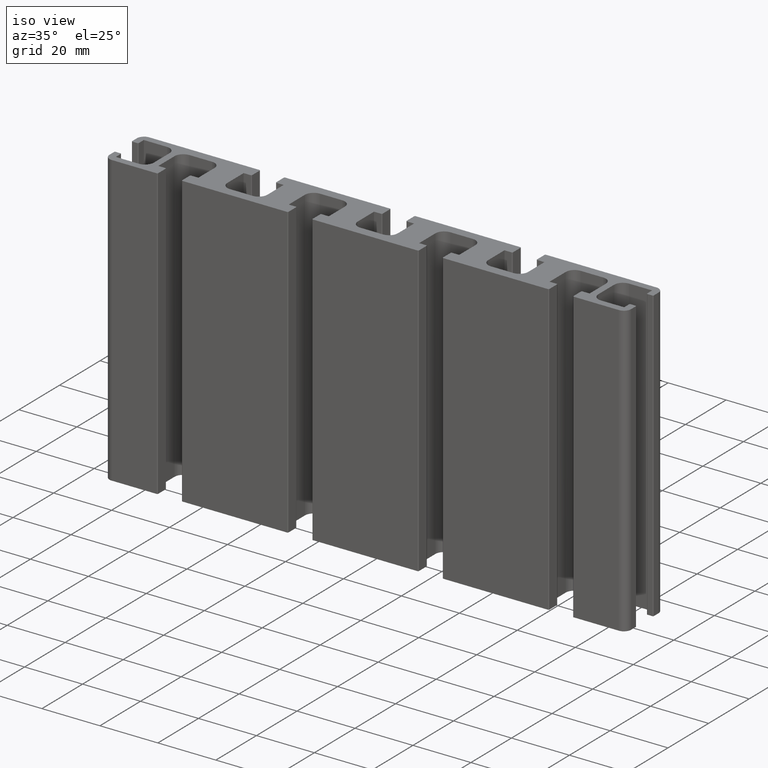
[diagram: clean part render]
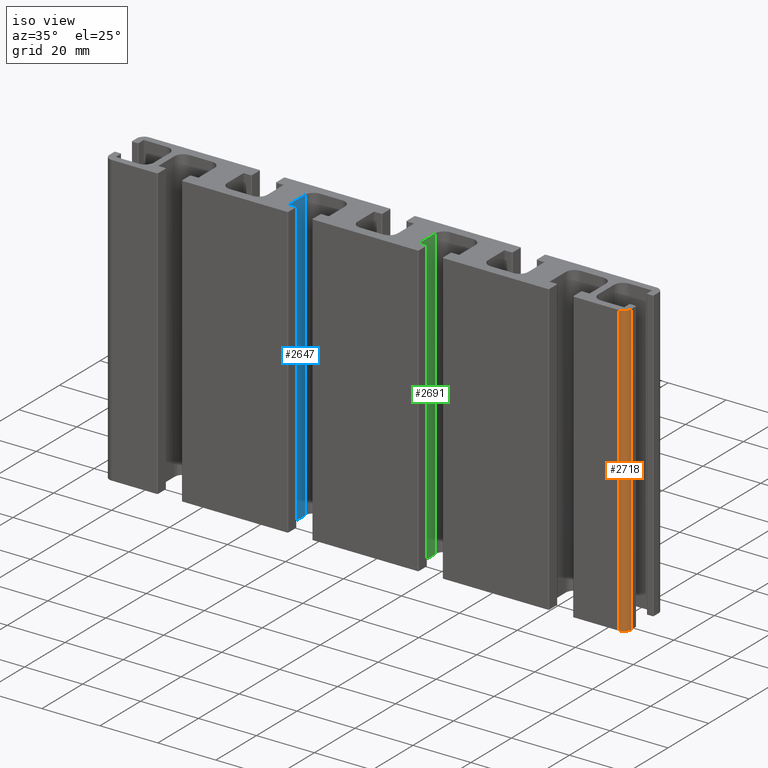
[diagram: same view with three faces highlighted in distinct colors, each labeled with its STEP entity id]
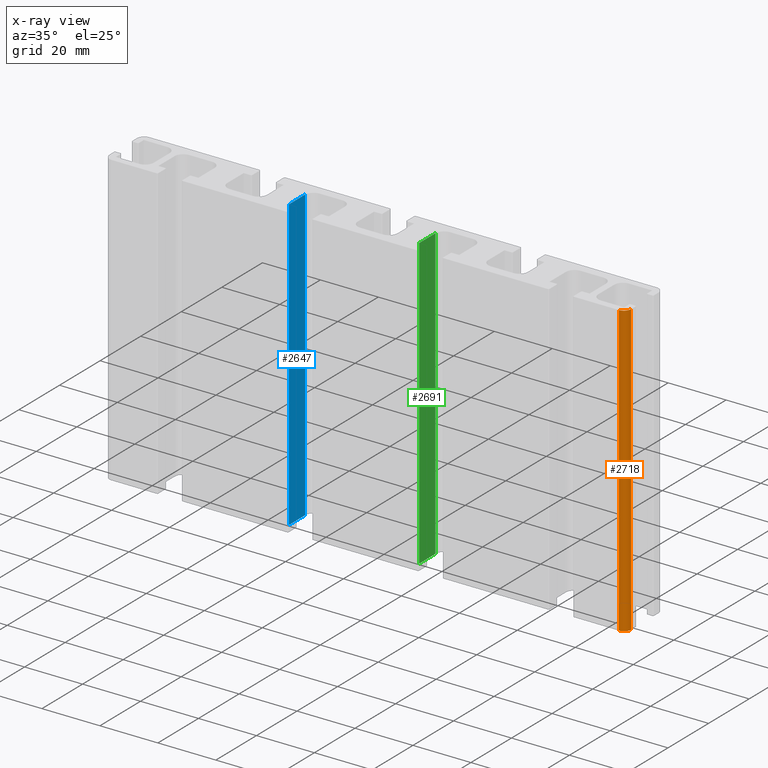
[diagram: x-ray of the same camera — body ghosted, the three highlighted faces saturated]
A machine part, iso view with three faces highlighted in distinct colors.
The next image is the same camera in x-ray (body ghosted, the three faces saturated) — at least one of them is partly hidden behind the body in this view.
Their STEP definitions:

[orange] entity #2718 — the highlighted cylindrical surface (edge-blend (fillet) strip) has radius 2.5 mm, axis along (0, 0, 1).
#123=CIRCLE('',#2958,2.5);
#130=CIRCLE('',#2972,2.5);
#188=CYLINDRICAL_SURFACE('',#2971,2.5);
#322=FACE_OUTER_BOUND('',#458,.T.);
#458=EDGE_LOOP('',(#2365,#2366,#2367,#2368));
#735=LINE('',#4540,#1021);
#744=LINE('',#4567,#1030);
#1021=VECTOR('',#3719,100.);
#1030=VECTOR('',#3756,100.);
#1295=VERTEX_POINT('',#4537);
#1296=VERTEX_POINT('',#4539);
#1297=VERTEX_POINT('',#4543);
#1300=VERTEX_POINT('',#4566);
#1683=EDGE_CURVE('',#1295,#1296,#735,.T.);
#1685=EDGE_CURVE('',#1297,#1296,#123,.T.);
#1699=EDGE_CURVE('',#1300,#1297,#744,.T.);
#1701=EDGE_CURVE('',#1300,#1295,#130,.T.);
#2365=ORIENTED_EDGE('',*,*,#1685,.T.);
#2366=ORIENTED_EDGE('',*,*,#1683,.F.);
#2367=ORIENTED_EDGE('',*,*,#1701,.F.);
#2368=ORIENTED_EDGE('',*,*,#1699,.T.);
#2718=ADVANCED_FACE('',(#322),#188,.T.);
#2958=AXIS2_PLACEMENT_3D('',#4544,#3723,#3724);
#2971=AXIS2_PLACEMENT_3D('',#4569,#3758,#3759);
#2972=AXIS2_PLACEMENT_3D('',#4570,#3760,#3761);
#3719=DIRECTION('',(0.,0.,1.));
#3723=DIRECTION('center_axis',(0.,0.,-1.));
#3724=DIRECTION('ref_axis',(0.,1.,0.));
#3756=DIRECTION('',(0.,0.,1.));
#3758=DIRECTION('center_axis',(0.,0.,1.));
#3759=DIRECTION('ref_axis',(0.,1.,0.));
#3760=DIRECTION('center_axis',(0.,0.,-1.));
#3761=DIRECTION('ref_axis',(0.,1.,0.));
#4537=CARTESIAN_POINT('',(87.5,-9.25,0.));
#4539=CARTESIAN_POINT('',(87.5,-9.25,100.));
#4540=CARTESIAN_POINT('',(87.5,-9.25,0.));
#4543=CARTESIAN_POINT('',(90.,-6.75,100.));
#4544=CARTESIAN_POINT('Origin',(87.5,-6.75,100.));
#4566=CARTESIAN_POINT('',(90.,-6.75,0.));
#4567=CARTESIAN_POINT('',(90.,-6.75,0.));
#4569=CARTESIAN_POINT('Origin',(87.5,-6.75,0.));
#4570=CARTESIAN_POINT('Origin',(87.5,-6.75,0.));

[blue] entity #2647 — the highlighted planar face has unit normal (-1, 0, 0).
#251=FACE_OUTER_BOUND('',#387,.T.);
#387=EDGE_LOOP('',(#1951,#1952,#1953,#1954));
#594=LINE('',#4156,#880);
#595=LINE('',#4160,#881);
#596=LINE('',#4162,#882);
#597=LINE('',#4163,#883);
#880=VECTOR('',#3348,100.);
#881=VECTOR('',#3353,7.9999999999999);
#882=VECTOR('',#3354,100.);
#883=VECTOR('',#3355,7.9999999999999);
#1167=VERTEX_POINT('',#4153);
#1168=VERTEX_POINT('',#4155);
#1169=VERTEX_POINT('',#4159);
#1170=VERTEX_POINT('',#4161);
#1491=EDGE_CURVE('',#1168,#1167,#594,.T.);
#1493=EDGE_CURVE('',#1169,#1167,#595,.T.);
#1494=EDGE_CURVE('',#1170,#1169,#596,.T.);
#1495=EDGE_CURVE('',#1168,#1170,#597,.T.);
#1951=ORIENTED_EDGE('',*,*,#1493,.F.);
#1952=ORIENTED_EDGE('',*,*,#1494,.F.);
#1953=ORIENTED_EDGE('',*,*,#1495,.F.);
#1954=ORIENTED_EDGE('',*,*,#1491,.T.);
#2540=PLANE('',#2843);
#2647=ADVANCED_FACE('',(#251),#2540,.F.);
#2843=AXIS2_PLACEMENT_3D('',#4158,#3351,#3352);
#3348=DIRECTION('',(0.,0.,1.));
#3351=DIRECTION('center_axis',(-1.,0.,0.));
#3352=DIRECTION('ref_axis',(0.,-1.,0.));
#3353=DIRECTION('',(0.,1.,0.));
#3354=DIRECTION('',(0.,0.,1.));
#3355=DIRECTION('',(0.,-1.,0.));
#4153=CARTESIAN_POINT('',(-29.4037196466437,3.04999999999996,100.));
#4155=CARTESIAN_POINT('',(-29.4037196466437,3.04999999999996,0.));
#4156=CARTESIAN_POINT('',(-29.4037196466437,3.04999999999996,0.));
#4158=CARTESIAN_POINT('Origin',(-29.4037196466437,3.04999999999996,0.));
#4159=CARTESIAN_POINT('',(-29.4037196466437,-4.94999999999994,100.));
#4160=CARTESIAN_POINT('',(-29.4037196466437,1.52499999999998,100.));
#4161=CARTESIAN_POINT('',(-29.4037196466437,-4.94999999999994,0.));
#4162=CARTESIAN_POINT('',(-29.4037196466437,-4.94999999999994,0.));
#4163=CARTESIAN_POINT('',(-29.4037196466437,1.52499999999998,0.));

[green] entity #2691 — the highlighted planar face has unit normal (-1, -0, 0).
#295=FACE_OUTER_BOUND('',#431,.T.);
#431=EDGE_LOOP('',(#2127,#2128,#2129,#2130));
#689=LINE('',#4429,#975);
#690=LINE('',#4433,#976);
#691=LINE('',#4435,#977);
#692=LINE('',#4436,#978);
#975=VECTOR('',#3611,100.);
#976=VECTOR('',#3616,7.99999999999997);
#977=VECTOR('',#3617,100.);
#978=VECTOR('',#3618,7.99999999999997);
#1261=VERTEX_POINT('',#4426);
#1262=VERTEX_POINT('',#4428);
#1263=VERTEX_POINT('',#4432);
#1264=VERTEX_POINT('',#4434);
#1626=EDGE_CURVE('',#1262,#1261,#689,.T.);
#1628=EDGE_CURVE('',#1263,#1261,#690,.T.);
#1629=EDGE_CURVE('',#1264,#1263,#691,.T.);
#1630=EDGE_CURVE('',#1262,#1264,#692,.T.);
#2127=ORIENTED_EDGE('',*,*,#1628,.F.);
#2128=ORIENTED_EDGE('',*,*,#1629,.F.);
#2129=ORIENTED_EDGE('',*,*,#1630,.F.);
#2130=ORIENTED_EDGE('',*,*,#1626,.T.);
#2564=PLANE('',#2927);
#2691=ADVANCED_FACE('',(#295),#2564,.F.);
#2927=AXIS2_PLACEMENT_3D('',#4431,#3614,#3615);
#3611=DIRECTION('',(0.,0.,1.));
#3614=DIRECTION('center_axis',(-1.,-1.33226762955019E-14,0.));
#3615=DIRECTION('ref_axis',(1.33226762955019E-14,-1.,0.));
#3616=DIRECTION('',(-1.33226762955019E-14,1.,0.));
#3617=DIRECTION('',(0.,0.,1.));
#3618=DIRECTION('',(1.33226762955019E-14,-1.,0.));
#4426=CARTESIAN_POINT('',(15.5962803533563,3.04999999999996,100.));
#4428=CARTESIAN_POINT('',(15.5962803533563,3.04999999999996,0.));
#4429=CARTESIAN_POINT('',(15.5962803533563,3.04999999999996,0.));
#4431=CARTESIAN_POINT('Origin',(15.5962803533563,3.04999999999996,0.));
#4432=CARTESIAN_POINT('',(15.5962803533565,-4.95000000000001,100.));
#4433=CARTESIAN_POINT('',(15.5962803533564,1.52500000000009,100.));
#4434=CARTESIAN_POINT('',(15.5962803533565,-4.95000000000001,0.));
#4435=CARTESIAN_POINT('',(15.5962803533565,-4.95000000000001,0.));
#4436=CARTESIAN_POINT('',(15.5962803533564,1.52500000000009,0.));